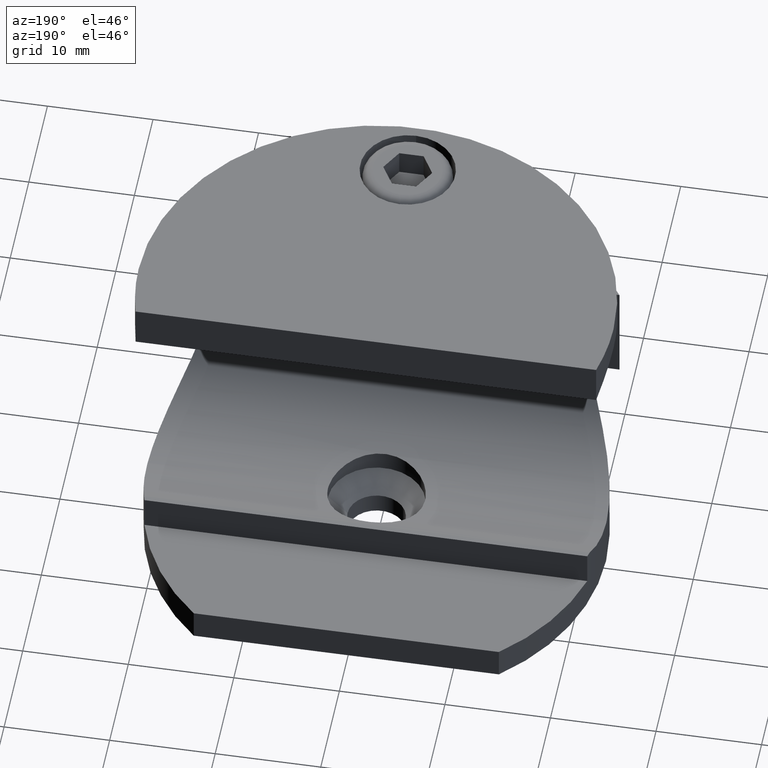
[diagram: clean part render]
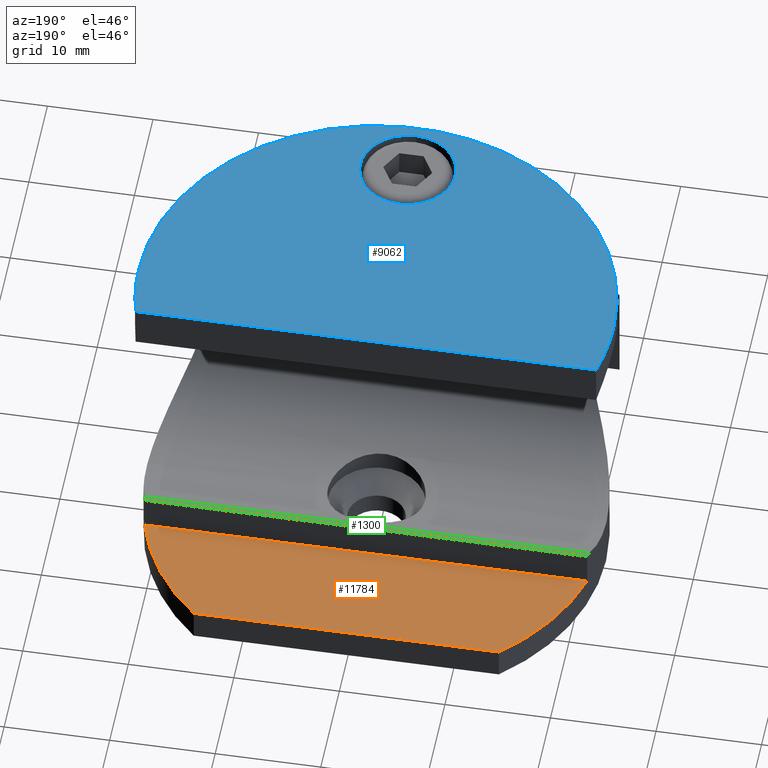
[diagram: same view with three faces highlighted in distinct colors, each labeled with its STEP entity id]
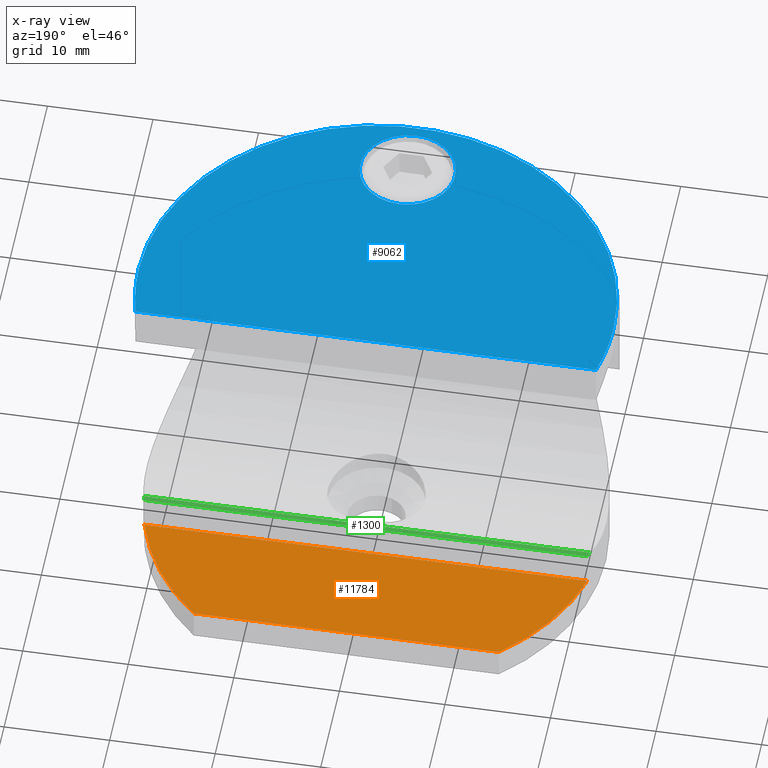
[diagram: x-ray of the same camera — body ghosted, the three highlighted faces saturated]
A machine part, auxiliary view with three faces highlighted in distinct colors.
The next image is the same camera in x-ray (body ghosted, the three faces saturated) — at least one of them is partly hidden behind the body in this view.
Their STEP definitions:

[orange] entity #11784 — the highlighted planar face has unit normal (0, 0, -1).
#467 = CARTESIAN_POINT ( 'NONE',  ( 2.377616284480567800E-016, 5.750000000000000000, 3.000000000000002700 ) ) ;
#1134 = VECTOR ( 'NONE', #12921, 1000.000000000000000 ) ;
#1169 = CARTESIAN_POINT ( 'NONE',  ( -20.97617696340303100, 5.750000000000001800, 3.000000000000002700 ) ) ;
#1393 = VERTEX_POINT ( 'NONE', #1169 ) ;
#1531 = DIRECTION ( 'NONE',  ( 0.0000000000000000000, 0.0000000000000000000, -1.000000000000000000 ) ) ;
#1984 = CARTESIAN_POINT ( 'NONE',  ( 0.0000000000000000000, 16.25000000000000000, 3.000000000000002700 ) ) ;
#2064 = LINE ( 'NONE', #1984, #1134 ) ;
#2189 = LINE ( 'NONE', #467, #14387 ) ;
#2690 = DIRECTION ( 'NONE',  ( -1.000000000000000000, 4.134984842574901600E-017, 0.0000000000000000000 ) ) ;
#3877 = CARTESIAN_POINT ( 'NONE',  ( 0.0000000000000000000, 0.0000000000000000000, 3.000000000000000000 ) ) ;
#3986 = PLANE ( 'NONE',  #4714 ) ;
#4008 = DIRECTION ( 'NONE',  ( -1.000000000000000000, 0.0000000000000000000, 0.0000000000000000000 ) ) ;
#4045 = EDGE_CURVE ( 'NONE', #6382, #5640, #2064, .T. ) ;
#4130 = AXIS2_PLACEMENT_3D ( 'NONE', #14126, #11436, #4008 ) ;
#4530 = CARTESIAN_POINT ( 'NONE',  ( -14.45683229480095700, 16.25000000000000000, 3.000000000000002700 ) ) ;
#4714 = AXIS2_PLACEMENT_3D ( 'NONE', #3877, #1531, #6390 ) ;
#5640 = VERTEX_POINT ( 'NONE', #4530 ) ;
#5797 = ORIENTED_EDGE ( 'NONE', *, *, #4045, .T. ) ;
#6020 = CARTESIAN_POINT ( 'NONE',  ( 0.0000000000000000000, 7.960204194457797400E-016, 3.000000000000002700 ) ) ;
#6074 = DIRECTION ( 'NONE',  ( -1.000000000000000000, 4.440892098500625400E-015, 0.0000000000000000000 ) ) ;
#6382 = VERTEX_POINT ( 'NONE', #11069 ) ;
#6390 = DIRECTION ( 'NONE',  ( -1.000000000000000000, 0.0000000000000000000, -0.0000000000000000000 ) ) ;
#6410 = FACE_OUTER_BOUND ( 'NONE', #9100, .T. ) ;
#6920 = VERTEX_POINT ( 'NONE', #15407 ) ;
#7250 = EDGE_CURVE ( 'NONE', #5640, #1393, #11435, .T. ) ;
#7676 = ORIENTED_EDGE ( 'NONE', *, *, #12360, .F. ) ;
#9100 = EDGE_LOOP ( 'NONE', ( #11746, #5797, #13259, #7676 ) ) ;
#10449 = EDGE_CURVE ( 'NONE', #6920, #6382, #14588, .T. ) ;
#11069 = CARTESIAN_POINT ( 'NONE',  ( 14.45683229480095700, 16.25000000000000000, 3.000000000000002700 ) ) ;
#11435 = CIRCLE ( 'NONE', #12569, 21.75000000000000000 ) ;
#11436 = DIRECTION ( 'NONE',  ( -0.0000000000000000000, -0.0000000000000000000, 1.000000000000000000 ) ) ;
#11746 = ORIENTED_EDGE ( 'NONE', *, *, #10449, .T. ) ;
#11784 = ADVANCED_FACE ( 'NONE', ( #6410 ), #3986, .F. ) ;
#12360 = EDGE_CURVE ( 'NONE', #6920, #1393, #2189, .T. ) ;
#12569 = AXIS2_PLACEMENT_3D ( 'NONE', #6020, #14637, #6074 ) ;
#12921 = DIRECTION ( 'NONE',  ( -1.000000000000000000, 0.0000000000000000000, 0.0000000000000000000 ) ) ;
#13259 = ORIENTED_EDGE ( 'NONE', *, *, #7250, .T. ) ;
#14126 = CARTESIAN_POINT ( 'NONE',  ( 0.0000000000000000000, 7.960204194457797400E-016, 3.000000000000002700 ) ) ;
#14387 = VECTOR ( 'NONE', #2690, 1000.000000000000000 ) ;
#14588 = CIRCLE ( 'NONE', #4130, 21.75000000000000000 ) ;
#14637 = DIRECTION ( 'NONE',  ( -0.0000000000000000000, -0.0000000000000000000, 1.000000000000000000 ) ) ;
#15407 = CARTESIAN_POINT ( 'NONE',  ( 20.97617696340302700, 5.749999999999999100, 3.000000000000002700 ) ) ;

[blue] entity #9062 — the highlighted planar face has unit normal (0, 0, -1).
#43 = DIRECTION ( 'NONE',  ( -1.000000000000000000, 0.0000000000000000000, 0.0000000000000000000 ) ) ;
#592 = CIRCLE ( 'NONE', #15578, 22.50000000000000000 ) ;
#1649 = ORIENTED_EDGE ( 'NONE', *, *, #8108, .F. ) ;
#1751 = VERTEX_POINT ( 'NONE', #12048 ) ;
#2047 = AXIS2_PLACEMENT_3D ( 'NONE', #10408, #4112, #6564 ) ;
#2356 = ORIENTED_EDGE ( 'NONE', *, *, #7252, .F. ) ;
#2615 = LINE ( 'NONE', #13520, #8336 ) ;
#3449 = EDGE_CURVE ( 'NONE', #14777, #1751, #13716, .T. ) ;
#4112 = DIRECTION ( 'NONE',  ( 0.0000000000000000000, 0.0000000000000000000, -1.000000000000000000 ) ) ;
#4680 = EDGE_CURVE ( 'NONE', #11830, #5722, #592, .T. ) ;
#4721 = CIRCLE ( 'NONE', #11465, 4.500000000000000900 ) ;
#4749 = CARTESIAN_POINT ( 'NONE',  ( 0.0000000000000000000, 0.0000000000000000000, 12.50000000000000000 ) ) ;
#5097 = CARTESIAN_POINT ( 'NONE',  ( 21.81742422927142800, 5.500000000000001800, 12.50000000000000000 ) ) ;
#5150 = DIRECTION ( 'NONE',  ( 1.000000000000000000, 0.0000000000000000000, 0.0000000000000000000 ) ) ;
#5310 = CIRCLE ( 'NONE', #15287, 22.50000000000000000 ) ;
#5722 = VERTEX_POINT ( 'NONE', #13524 ) ;
#5938 = ORIENTED_EDGE ( 'NONE', *, *, #4680, .F. ) ;
#5960 = CARTESIAN_POINT ( 'NONE',  ( -22.50000000000000000, 0.0000000000000000000, 12.50000000000000000 ) ) ;
#5989 = DIRECTION ( 'NONE',  ( 0.0000000000000000000, 0.0000000000000000000, -1.000000000000000000 ) ) ;
#6229 = DIRECTION ( 'NONE',  ( 0.0000000000000000000, 0.0000000000000000000, -1.000000000000000000 ) ) ;
#6540 = EDGE_LOOP ( 'NONE', ( #15635, #1649 ) ) ;
#6564 = DIRECTION ( 'NONE',  ( -1.000000000000000000, 0.0000000000000000000, 0.0000000000000000000 ) ) ;
#6618 = PLANE ( 'NONE',  #6964 ) ;
#6964 = AXIS2_PLACEMENT_3D ( 'NONE', #15098, #14946, #9076 ) ;
#7252 = EDGE_CURVE ( 'NONE', #12522, #15092, #5310, .T. ) ;
#8108 = EDGE_CURVE ( 'NONE', #1751, #14777, #4721, .T. ) ;
#8336 = VECTOR ( 'NONE', #5150, 1000.000000000000000 ) ;
#9062 = ADVANCED_FACE ( 'NONE', ( #10632, #9874 ), #6618, .F. ) ;
#9076 = DIRECTION ( 'NONE',  ( -1.000000000000000000, 0.0000000000000000000, -0.0000000000000000000 ) ) ;
#9196 = EDGE_LOOP ( 'NONE', ( #5938, #9595, #2356, #12137 ) ) ;
#9199 = DIRECTION ( 'NONE',  ( 0.0000000000000000000, -1.000000000000000000, 0.0000000000000000000 ) ) ;
#9487 = EDGE_CURVE ( 'NONE', #15092, #11830, #2615, .T. ) ;
#9559 = EDGE_CURVE ( 'NONE', #5722, #12522, #13656, .T. ) ;
#9595 = ORIENTED_EDGE ( 'NONE', *, *, #9487, .F. ) ;
#9795 = DIRECTION ( 'NONE',  ( -0.0000000000000000000, -6.123233995736766000E-017, 1.000000000000000000 ) ) ;
#9874 = FACE_OUTER_BOUND ( 'NONE', #9196, .T. ) ;
#10337 = CARTESIAN_POINT ( 'NONE',  ( -21.81742422927142800, 5.500000000000001800, 12.50000000000000000 ) ) ;
#10408 = CARTESIAN_POINT ( 'NONE',  ( 0.0000000000000000000, 0.0000000000000000000, 12.50000000000000000 ) ) ;
#10632 = FACE_BOUND ( 'NONE', #6540, .T. ) ;
#11465 = AXIS2_PLACEMENT_3D ( 'NONE', #12087, #9795, #13304 ) ;
#11610 = DIRECTION ( 'NONE',  ( -0.0000000000000000000, -6.123233995736766000E-017, 1.000000000000000000 ) ) ;
#11830 = VERTEX_POINT ( 'NONE', #5097 ) ;
#12015 = DIRECTION ( 'NONE',  ( -1.000000000000000000, 0.0000000000000000000, 0.0000000000000000000 ) ) ;
#12048 = CARTESIAN_POINT ( 'NONE',  ( 5.510910596163089600E-016, -12.49999999999999600, 12.49999999999999800 ) ) ;
#12087 = CARTESIAN_POINT ( 'NONE',  ( 0.0000000000000000000, -16.99999999999999600, 12.49999999999999800 ) ) ;
#12137 = ORIENTED_EDGE ( 'NONE', *, *, #9559, .F. ) ;
#12198 = CARTESIAN_POINT ( 'NONE',  ( 0.0000000000000000000, 0.0000000000000000000, 12.50000000000000000 ) ) ;
#12522 = VERTEX_POINT ( 'NONE', #5960 ) ;
#12664 = CARTESIAN_POINT ( 'NONE',  ( 0.0000000000000000000, -21.50000000000000000, 12.49999999999999800 ) ) ;
#13304 = DIRECTION ( 'NONE',  ( 0.0000000000000000000, -1.000000000000000000, 0.0000000000000000000 ) ) ;
#13520 = CARTESIAN_POINT ( 'NONE',  ( -21.81742422927142800, 5.500000000000001800, 12.50000000000000000 ) ) ;
#13524 = CARTESIAN_POINT ( 'NONE',  ( 22.50000000000000000, 2.755455298081544800E-015, 12.50000000000000000 ) ) ;
#13555 = AXIS2_PLACEMENT_3D ( 'NONE', #15142, #11610, #9199 ) ;
#13656 = CIRCLE ( 'NONE', #2047, 22.50000000000000000 ) ;
#13716 = CIRCLE ( 'NONE', #13555, 4.500000000000000900 ) ;
#14777 = VERTEX_POINT ( 'NONE', #12664 ) ;
#14946 = DIRECTION ( 'NONE',  ( 0.0000000000000000000, 0.0000000000000000000, -1.000000000000000000 ) ) ;
#15092 = VERTEX_POINT ( 'NONE', #10337 ) ;
#15098 = CARTESIAN_POINT ( 'NONE',  ( 0.0000000000000000000, 0.0000000000000000000, 12.50000000000000000 ) ) ;
#15142 = CARTESIAN_POINT ( 'NONE',  ( 0.0000000000000000000, -16.99999999999999600, 12.49999999999999800 ) ) ;
#15287 = AXIS2_PLACEMENT_3D ( 'NONE', #12198, #6229, #43 ) ;
#15578 = AXIS2_PLACEMENT_3D ( 'NONE', #4749, #5989, #12015 ) ;
#15635 = ORIENTED_EDGE ( 'NONE', *, *, #3449, .F. ) ;

[green] entity #1300 — the highlighted planar face has unit normal (0, 0, -1).
#347 = CARTESIAN_POINT ( 'NONE',  ( 20.97617696340302700, 5.749999999999999100, 6.319999999999999400 ) ) ;
#1219 = VERTEX_POINT ( 'NONE', #347 ) ;
#1300 = ADVANCED_FACE ( 'NONE', ( #7283 ), #15273, .F. ) ;
#1802 = DIRECTION ( 'NONE',  ( 3.097720492815727000E-017, 6.123233995736766000E-017, -1.000000000000000000 ) ) ;
#2109 = DIRECTION ( 'NONE',  ( 3.097720492815727000E-017, 6.123233995736766000E-017, -1.000000000000000000 ) ) ;
#2382 = VERTEX_POINT ( 'NONE', #14241 ) ;
#2487 = ORIENTED_EDGE ( 'NONE', *, *, #12276, .T. ) ;
#2549 = AXIS2_PLACEMENT_3D ( 'NONE', #10246, #1802, #9073 ) ;
#2598 = ORIENTED_EDGE ( 'NONE', *, *, #5863, .T. ) ;
#3221 = AXIS2_PLACEMENT_3D ( 'NONE', #4381, #5611, #10473 ) ;
#3653 = DIRECTION ( 'NONE',  ( -1.000000000000000000, -4.646580739223590300E-017, -3.097720492815727000E-017 ) ) ;
#4028 = CIRCLE ( 'NONE', #2549, 21.75000000000000000 ) ;
#4381 = CARTESIAN_POINT ( 'NONE',  ( -28.00000000000000400, -21.75100000000000100, 6.319999999999998500 ) ) ;
#4475 = CARTESIAN_POINT ( 'NONE',  ( 21.10665955980768200, 5.250849667089979400, 6.320000000000001200 ) ) ;
#4563 = CARTESIAN_POINT ( 'NONE',  ( 0.0000000000000000000, 0.0000000000000000000, 6.320000000000001200 ) ) ;
#4751 = VECTOR ( 'NONE', #11950, 1000.000000000000000 ) ;
#5015 = VERTEX_POINT ( 'NONE', #4475 ) ;
#5034 = EDGE_CURVE ( 'NONE', #1219, #5015, #4028, .T. ) ;
#5085 = CARTESIAN_POINT ( 'NONE',  ( -28.00000000000000400, 5.749999999999998200, 6.320000000000000300 ) ) ;
#5420 = VERTEX_POINT ( 'NONE', #12502 ) ;
#5463 = LINE ( 'NONE', #5085, #11187 ) ;
#5611 = DIRECTION ( 'NONE',  ( 3.097720492815727000E-017, 6.123233995736766000E-017, -1.000000000000000000 ) ) ;
#5863 = EDGE_CURVE ( 'NONE', #5420, #5015, #12779, .T. ) ;
#6047 = CIRCLE ( 'NONE', #12593, 21.75000000000000000 ) ;
#7283 = FACE_OUTER_BOUND ( 'NONE', #9817, .T. ) ;
#9073 = DIRECTION ( 'NONE',  ( 0.0000000000000000000, 1.000000000000000000, 7.975740119433595300E-017 ) ) ;
#9817 = EDGE_LOOP ( 'NONE', ( #2487, #13998, #2598, #15124 ) ) ;
#10246 = CARTESIAN_POINT ( 'NONE',  ( 0.0000000000000000000, 0.0000000000000000000, 6.320000000000001200 ) ) ;
#10473 = DIRECTION ( 'NONE',  ( 0.0000000000000000000, 1.000000000000000000, 6.123233995736766000E-017 ) ) ;
#11187 = VECTOR ( 'NONE', #3653, 1000.000000000000000 ) ;
#11552 = EDGE_CURVE ( 'NONE', #5420, #2382, #6047, .T. ) ;
#11950 = DIRECTION ( 'NONE',  ( 1.000000000000000000, -0.0000000000000000000, -0.0000000000000000000 ) ) ;
#12276 = EDGE_CURVE ( 'NONE', #1219, #2382, #5463, .T. ) ;
#12502 = CARTESIAN_POINT ( 'NONE',  ( -21.10665955980768200, 5.250849667089979400, 6.320000000000001200 ) ) ;
#12593 = AXIS2_PLACEMENT_3D ( 'NONE', #4563, #2109, #14375 ) ;
#12779 = LINE ( 'NONE', #13144, #4751 ) ;
#13144 = CARTESIAN_POINT ( 'NONE',  ( -21.75000000000000000, 5.250849667089979400, 6.320000000000001200 ) ) ;
#13998 = ORIENTED_EDGE ( 'NONE', *, *, #11552, .F. ) ;
#14241 = CARTESIAN_POINT ( 'NONE',  ( -20.97617696340303100, 5.749999999999998200, 6.320000000000000300 ) ) ;
#14375 = DIRECTION ( 'NONE',  ( 0.0000000000000000000, 1.000000000000000000, 7.975740119433595300E-017 ) ) ;
#15124 = ORIENTED_EDGE ( 'NONE', *, *, #5034, .F. ) ;
#15273 = PLANE ( 'NONE',  #3221 ) ;